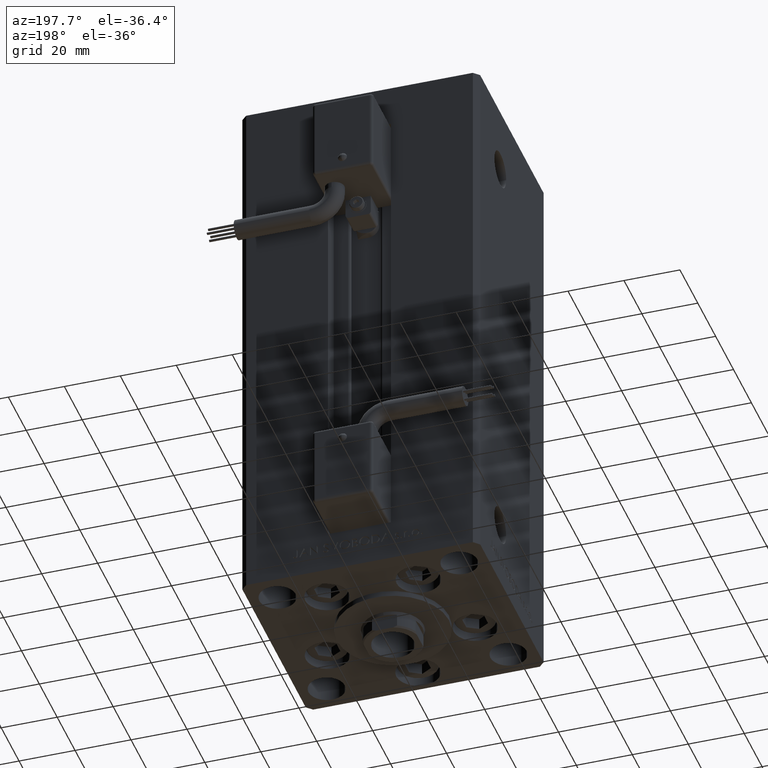
[diagram: clean part render]
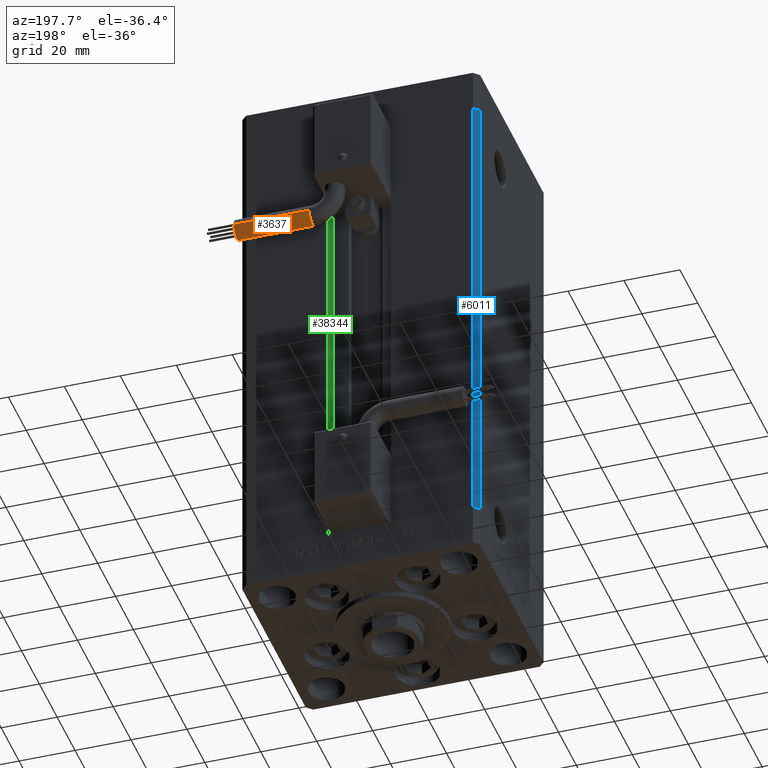
[diagram: same view with three faces highlighted in distinct colors, each labeled with its STEP entity id]
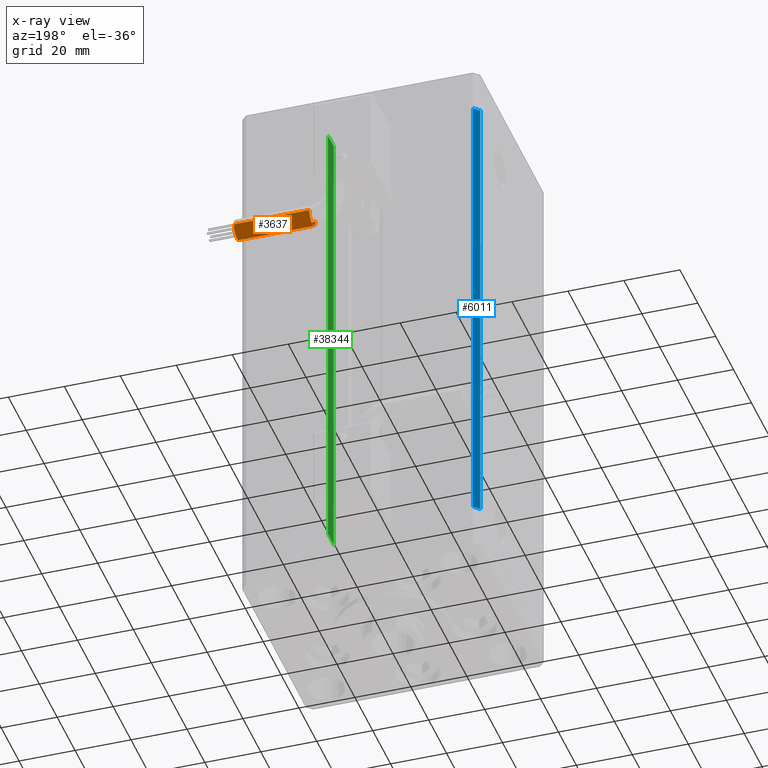
[diagram: x-ray of the same camera — body ghosted, the three highlighted faces saturated]
A machine part, auxiliary view with three faces highlighted in distinct colors.
The next image is the same camera in x-ray (body ghosted, the three faces saturated) — at least one of them is partly hidden behind the body in this view.
Their STEP definitions:

[orange] entity #3637 — the highlighted cylindrical surface (edge-blend (fillet) strip) has radius 3.5 mm, axis along (1, -0, 0).
#138 = DIRECTION ( 'NONE',  ( 1.000000000000000000, -2.599999999999999847E-16, 2.220446049250000002E-16 ) ) ;
#3254 = AXIS2_PLACEMENT_3D ( 'NONE', #43160, #51670, #22909 ) ;
#3637 = ADVANCED_FACE ( 'NONE', ( #41077 ), #45590, .T. ) ;
#3918 = CARTESIAN_POINT ( 'NONE',  ( 13.79999999999999893, 42.00000000000000000, -68.50000000000000000 ) ) ;
#3923 = DIRECTION ( 'NONE',  ( 0.000000000000000000, 0.000000000000000000, -1.000000000000000000 ) ) ;
#4815 = DIRECTION ( 'NONE',  ( -4.956352788505158337E-16, -1.000000000000000000, 0.000000000000000000 ) ) ;
#6182 = AXIS2_PLACEMENT_3D ( 'NONE', #14814, #30801, #22283 ) ;
#8112 = VERTEX_POINT ( 'NONE', #31398 ) ;
#8137 = EDGE_CURVE ( 'NONE', #41085, #28724, #35768, .T. ) ;
#9191 = EDGE_CURVE ( 'NONE', #35709, #47093, #24726, .T. ) ;
#10064 = CIRCLE ( 'NONE', #3254, 3.500000000000003109 ) ;
#11330 = CIRCLE ( 'NONE', #6182, 3.500000000000003109 ) ;
#11669 = CARTESIAN_POINT ( 'NONE',  ( 13.79999999999999893, 42.00000000000000000, -65.00000000000000000 ) ) ;
#12209 = DIRECTION ( 'NONE',  ( 1.000000000000000000, -2.599999999999999847E-16, 2.220446049250000002E-16 ) ) ;
#14420 = EDGE_LOOP ( 'NONE', ( #33071, #23957, #18898, #24333, #27166 ) ) ;
#14814 = CARTESIAN_POINT ( 'NONE',  ( 40.80000000000000426, 42.00000000000000000, -65.00000000000000000 ) ) ;
#16038 = CARTESIAN_POINT ( 'NONE',  ( 13.79999999999999893, 42.00000000000000000, -65.00000000000000000 ) ) ;
#16251 = EDGE_CURVE ( 'NONE', #28724, #35709, #10064, .T. ) ;
#16922 = CARTESIAN_POINT ( 'NONE',  ( 13.79999999999999716, 38.50000000000000000, -65.00000000000000000 ) ) ;
#17189 = VECTOR ( 'NONE', #138, 1000.000000000000000 ) ;
#17913 = AXIS2_PLACEMENT_3D ( 'NONE', #11669, #28715, #3923 ) ;
#18898 = ORIENTED_EDGE ( 'NONE', *, *, #9191, .T. ) ;
#21430 = CARTESIAN_POINT ( 'NONE',  ( 13.79999999999999893, 38.50000000000000000, -65.00000000000000000 ) ) ;
#22283 = DIRECTION ( 'NONE',  ( 0.000000000000000000, 0.000000000000000000, -1.000000000000000000 ) ) ;
#22845 = AXIS2_PLACEMENT_3D ( 'NONE', #16038, #32289, #4815 ) ;
#22909 = DIRECTION ( 'NONE',  ( 0.000000000000000000, 0.000000000000000000, -1.000000000000000000 ) ) ;
#23957 = ORIENTED_EDGE ( 'NONE', *, *, #16251, .T. ) ;
#24333 = ORIENTED_EDGE ( 'NONE', *, *, #28913, .F. ) ;
#24726 = LINE ( 'NONE', #36976, #36659 ) ;
#24844 = EDGE_CURVE ( 'NONE', #41085, #8112, #28394, .T. ) ;
#26029 = CARTESIAN_POINT ( 'NONE',  ( 40.80000000000000426, 45.50000000000000711, -65.00000000000000000 ) ) ;
#27166 = ORIENTED_EDGE ( 'NONE', *, *, #24844, .F. ) ;
#28394 = LINE ( 'NONE', #16922, #17189 ) ;
#28715 = DIRECTION ( 'NONE',  ( 1.000000000000000000, 0.000000000000000000, 2.220446049250000002E-16 ) ) ;
#28724 = VERTEX_POINT ( 'NONE', #3918 ) ;
#28913 = EDGE_CURVE ( 'NONE', #8112, #47093, #11330, .T. ) ;
#30801 = DIRECTION ( 'NONE',  ( 1.000000000000000000, 0.000000000000000000, 2.220446049250000002E-16 ) ) ;
#31398 = CARTESIAN_POINT ( 'NONE',  ( 40.80000000000000426, 38.50000000000000000, -65.00000000000000000 ) ) ;
#32289 = DIRECTION ( 'NONE',  ( 1.000000000000000000, -2.599999999999999847E-16, 2.220446049250000002E-16 ) ) ;
#33071 = ORIENTED_EDGE ( 'NONE', *, *, #8137, .T. ) ;
#35709 = VERTEX_POINT ( 'NONE', #51489 ) ;
#35768 = CIRCLE ( 'NONE', #17913, 3.500000000000003109 ) ;
#36659 = VECTOR ( 'NONE', #12209, 1000.000000000000000 ) ;
#36976 = CARTESIAN_POINT ( 'NONE',  ( 13.80000000000000071, 45.50000000000000711, -65.00000000000000000 ) ) ;
#41077 = FACE_OUTER_BOUND ( 'NONE', #14420, .T. ) ;
#41085 = VERTEX_POINT ( 'NONE', #21430 ) ;
#43160 = CARTESIAN_POINT ( 'NONE',  ( 13.79999999999999893, 42.00000000000000000, -65.00000000000000000 ) ) ;
#45590 = CYLINDRICAL_SURFACE ( 'NONE', #22845, 3.500000000000003109 ) ;
#47093 = VERTEX_POINT ( 'NONE', #26029 ) ;
#51489 = CARTESIAN_POINT ( 'NONE',  ( 13.79999999999999893, 45.50000000000000711, -65.00000000000000000 ) ) ;
#51670 = DIRECTION ( 'NONE',  ( 1.000000000000000000, 0.000000000000000000, 2.220446049250000002E-16 ) ) ;

[blue] entity #6011 — the highlighted planar face has unit normal (0.7071, -0.7071, 0).
#299 = DIRECTION ( 'NONE',  ( -0.000000000000000000, -0.000000000000000000, -1.000000000000000000 ) ) ;
#1649 = AXIS2_PLACEMENT_3D ( 'NONE', #37327, #17881, #45846 ) ;
#2037 = CARTESIAN_POINT ( 'NONE',  ( -40.50000000000000000, 37.50000000000000711, 168.5000000000000000 ) ) ;
#2747 = CARTESIAN_POINT ( 'NONE',  ( -40.50000000000000000, 37.50000000000000711, 168.5000000000000000 ) ) ;
#6011 = ADVANCED_FACE ( 'NONE', ( #29599 ), #21081, .F. ) ;
#8033 = CARTESIAN_POINT ( 'NONE',  ( -42.50000000000000711, 35.50000000000001421, 168.5000000000000000 ) ) ;
#9618 = ORIENTED_EDGE ( 'NONE', *, *, #25089, .T. ) ;
#14259 = VECTOR ( 'NONE', #25408, 1000.000000000000114 ) ;
#17881 = DIRECTION ( 'NONE',  ( 0.7071067811865451302, -0.7071067811865500152, 0.000000000000000000 ) ) ;
#18893 = VERTEX_POINT ( 'NONE', #46551 ) ;
#19360 = CARTESIAN_POINT ( 'NONE',  ( -42.50000000000000711, 35.50000000000001421, 168.5000000000000000 ) ) ;
#20944 = EDGE_CURVE ( 'NONE', #41818, #18893, #44538, .T. ) ;
#21081 = PLANE ( 'NONE',  #1649 ) ;
#25089 = EDGE_CURVE ( 'NONE', #47405, #27016, #32055, .T. ) ;
#25408 = DIRECTION ( 'NONE',  ( -0.7071067811865500152, -0.7071067811865451302, 0.000000000000000000 ) ) ;
#25646 = EDGE_CURVE ( 'NONE', #47405, #41818, #46025, .T. ) ;
#25905 = ORIENTED_EDGE ( 'NONE', *, *, #20944, .F. ) ;
#27016 = VERTEX_POINT ( 'NONE', #34258 ) ;
#28281 = EDGE_LOOP ( 'NONE', ( #39600, #25905, #43977, #9618 ) ) ;
#29429 = CARTESIAN_POINT ( 'NONE',  ( -40.50000000000000000, 37.50000000000000711, 0.000000000000000000 ) ) ;
#29599 = FACE_OUTER_BOUND ( 'NONE', #28281, .T. ) ;
#32055 = LINE ( 'NONE', #44572, #46054 ) ;
#34258 = CARTESIAN_POINT ( 'NONE',  ( -40.50000000000000000, 37.50000000000000711, 0.000000000000000000 ) ) ;
#37327 = CARTESIAN_POINT ( 'NONE',  ( -40.50000000000000000, 37.50000000000000711, 168.5000000000000000 ) ) ;
#38283 = DIRECTION ( 'NONE',  ( -0.7071067811865500152, -0.7071067811865451302, 0.000000000000000000 ) ) ;
#39600 = ORIENTED_EDGE ( 'NONE', *, *, #48552, .T. ) ;
#41818 = VERTEX_POINT ( 'NONE', #19360 ) ;
#42592 = VECTOR ( 'NONE', #299, 1000.000000000000000 ) ;
#43977 = ORIENTED_EDGE ( 'NONE', *, *, #25646, .F. ) ;
#44538 = LINE ( 'NONE', #8033, #42592 ) ;
#44572 = CARTESIAN_POINT ( 'NONE',  ( -40.50000000000000000, 37.50000000000000711, 168.5000000000000000 ) ) ;
#45176 = VECTOR ( 'NONE', #38283, 1000.000000000000114 ) ;
#45417 = LINE ( 'NONE', #29429, #14259 ) ;
#45846 = DIRECTION ( 'NONE',  ( 0.7071067811865500152, 0.7071067811865451302, 0.000000000000000000 ) ) ;
#46025 = LINE ( 'NONE', #2037, #45176 ) ;
#46054 = VECTOR ( 'NONE', #52558, 1000.000000000000000 ) ;
#46551 = CARTESIAN_POINT ( 'NONE',  ( -42.50000000000000711, 35.50000000000001421, 0.000000000000000000 ) ) ;
#47405 = VERTEX_POINT ( 'NONE', #2747 ) ;
#48552 = EDGE_CURVE ( 'NONE', #27016, #18893, #45417, .T. ) ;
#52558 = DIRECTION ( 'NONE',  ( -0.000000000000000000, -0.000000000000000000, -1.000000000000000000 ) ) ;

[green] entity #38344 — the highlighted planar face has unit normal (1, 0, 0).
#739 = EDGE_CURVE ( 'NONE', #44958, #33573, #36112, .T. ) ;
#1575 = LINE ( 'NONE', #51118, #7378 ) ;
#3687 = DIRECTION ( 'NONE',  ( 0.000000000000000000, 1.000000000000000000, 0.000000000000000000 ) ) ;
#5911 = ORIENTED_EDGE ( 'NONE', *, *, #739, .T. ) ;
#7164 = LINE ( 'NONE', #39930, #25687 ) ;
#7378 = VECTOR ( 'NONE', #10103, 1000.000000000000000 ) ;
#10103 = DIRECTION ( 'NONE',  ( -0.000000000000000000, -0.000000000000000000, 1.000000000000000000 ) ) ;
#11411 = CARTESIAN_POINT ( 'NONE',  ( 11.25000000000000000, 30.99999999999999289, 0.000000000000000000 ) ) ;
#12019 = DIRECTION ( 'NONE',  ( 0.000000000000000000, 0.000000000000000000, -1.000000000000000000 ) ) ;
#12213 = EDGE_LOOP ( 'NONE', ( #29972, #14705, #5911, #27084 ) ) ;
#13424 = EDGE_CURVE ( 'NONE', #38545, #33573, #18016, .T. ) ;
#14263 = CARTESIAN_POINT ( 'NONE',  ( 11.25000000000000000, 0.000000000000000000, 168.5000000000000000 ) ) ;
#14705 = ORIENTED_EDGE ( 'NONE', *, *, #15032, .F. ) ;
#15032 = EDGE_CURVE ( 'NONE', #44958, #46489, #7164, .T. ) ;
#15726 = CARTESIAN_POINT ( 'NONE',  ( 11.25000000000000000, 30.99999999999999289, 168.5000000000000000 ) ) ;
#16019 = CARTESIAN_POINT ( 'NONE',  ( 11.25000000000000000, 30.99999999999999289, 0.000000000000000000 ) ) ;
#18016 = LINE ( 'NONE', #14263, #46197 ) ;
#20281 = FACE_OUTER_BOUND ( 'NONE', #12213, .T. ) ;
#25687 = VECTOR ( 'NONE', #3687, 1000.000000000000000 ) ;
#27084 = ORIENTED_EDGE ( 'NONE', *, *, #13424, .F. ) ;
#27942 = CARTESIAN_POINT ( 'NONE',  ( 11.24999999999999289, 37.50000000000000000, 168.5000000000000000 ) ) ;
#28834 = VECTOR ( 'NONE', #31873, 1000.000000000000000 ) ;
#29972 = ORIENTED_EDGE ( 'NONE', *, *, #46872, .F. ) ;
#31873 = DIRECTION ( 'NONE',  ( -0.000000000000000000, -0.000000000000000000, 1.000000000000000000 ) ) ;
#33573 = VERTEX_POINT ( 'NONE', #15726 ) ;
#36112 = LINE ( 'NONE', #51857, #28834 ) ;
#38344 = ADVANCED_FACE ( 'NONE', ( #20281 ), #52510, .F. ) ;
#38545 = VERTEX_POINT ( 'NONE', #27942 ) ;
#38765 = DIRECTION ( 'NONE',  ( -0.000000000000000000, -1.000000000000000000, 0.000000000000000000 ) ) ;
#39930 = CARTESIAN_POINT ( 'NONE',  ( 11.25000000000000000, 30.99999999999999289, 0.000000000000000000 ) ) ;
#44958 = VERTEX_POINT ( 'NONE', #11411 ) ;
#46197 = VECTOR ( 'NONE', #38765, 1000.000000000000000 ) ;
#46489 = VERTEX_POINT ( 'NONE', #51247 ) ;
#46872 = EDGE_CURVE ( 'NONE', #46489, #38545, #1575, .T. ) ;
#47245 = AXIS2_PLACEMENT_3D ( 'NONE', #16019, #48515, #12019 ) ;
#48515 = DIRECTION ( 'NONE',  ( 1.000000000000000000, -0.000000000000000000, 0.000000000000000000 ) ) ;
#51118 = CARTESIAN_POINT ( 'NONE',  ( 11.25000000000000000, 37.50000000000000000, 0.000000000000000000 ) ) ;
#51247 = CARTESIAN_POINT ( 'NONE',  ( 11.25000000000000000, 37.50000000000000000, 0.000000000000000000 ) ) ;
#51857 = CARTESIAN_POINT ( 'NONE',  ( 11.25000000000000000, 30.99999999999999289, 0.000000000000000000 ) ) ;
#52510 = PLANE ( 'NONE',  #47245 ) ;